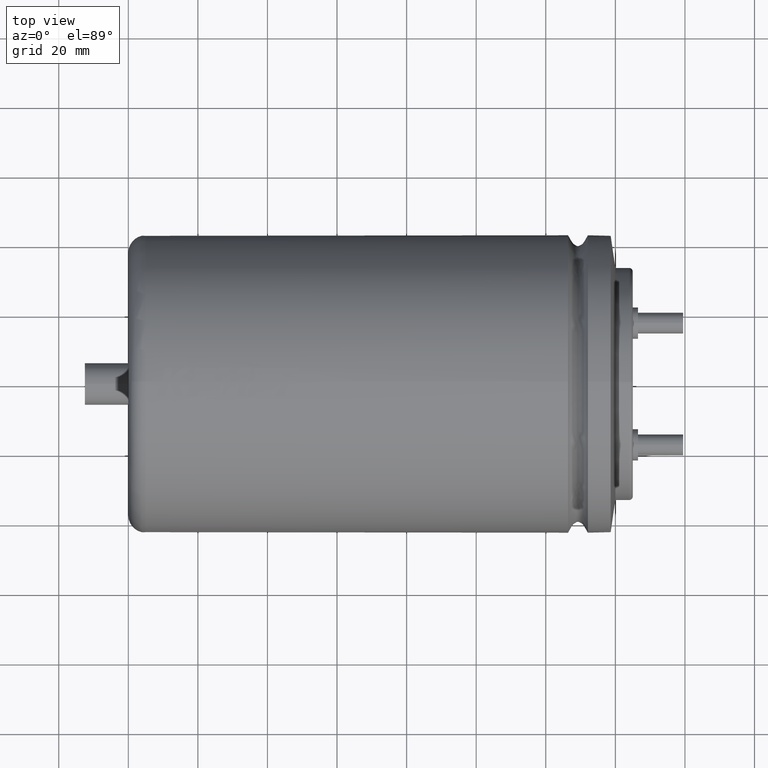
[diagram: clean part render]
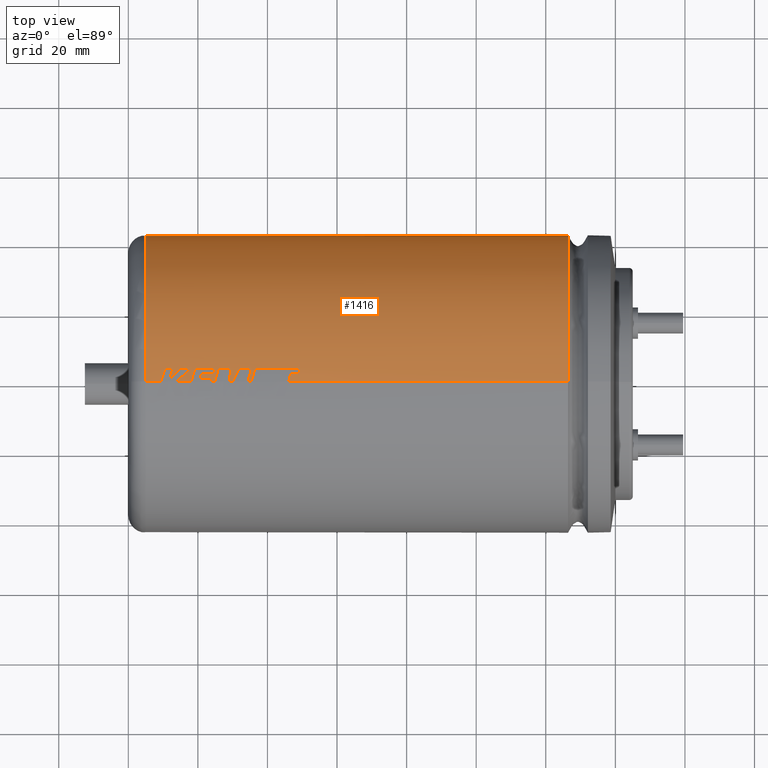
[diagram: same view with one face highlighted and labeled with its STEP entity id]
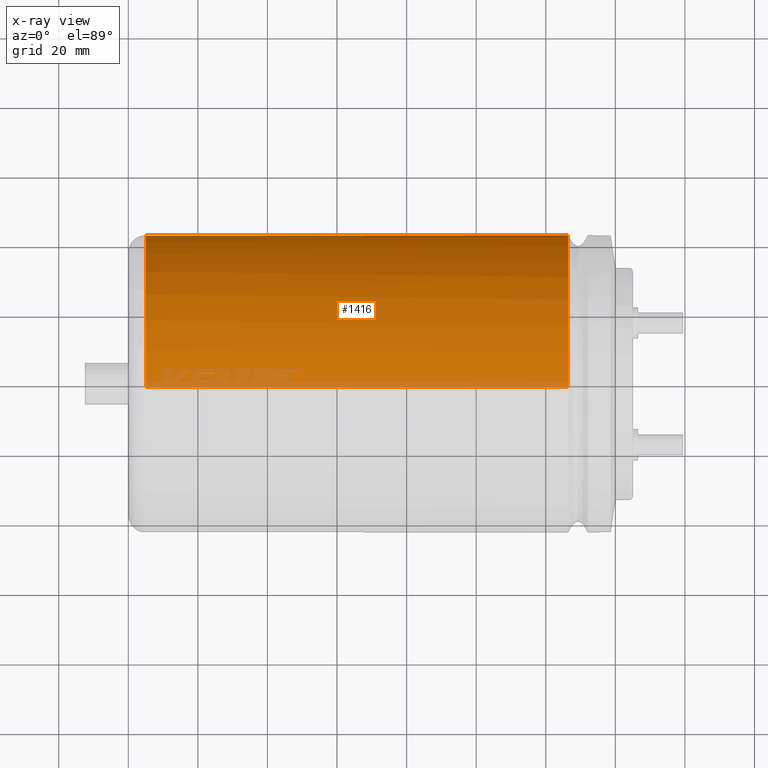
[diagram: x-ray of the same camera — body ghosted, the highlighted face saturated]
A machine part, top view. The second image highlights one B-rep face of the part: STEP entity #1416.
The next image is the same camera in x-ray: the body ghosted, the highlighted face saturated — about 6% of this face is hidden behind the body in this view.
In plain terms, the highlighted cylindrical surface (partial cylindrical patch) has radius 42.75 mm, axis along (-1, -0, -0).
Its self-contained STEP definition (entity closure, byte-faithful):
#6 = ORIENTED_EDGE ( 'NONE', *, *, #1022, .F. ) ;
#17 = CARTESIAN_POINT ( 'NONE',  ( 19.18127895595102200, 3.831743580796822100, 42.57793138623602400 ) ) ;
#51 = CARTESIAN_POINT ( 'NONE',  ( 46.06940501250741000, 3.464099563883077400E-008, 42.74997599866896500 ) ) ;
#60 = ORIENTED_EDGE ( 'NONE', *, *, #3074, .F. ) ;
#73 = DIRECTION ( 'NONE',  ( -1.000000000000000000, -0.0000000000000000000, -0.0000000000000000000 ) ) ;
#91 = FACE_OUTER_BOUND ( 'NONE', #3297, .T. ) ;
#93 = EDGE_CURVE ( 'NONE', #2442, #1033, #3871, .T. ) ;
#109 = VERTEX_POINT ( 'NONE', #955 ) ;
#153 = VERTEX_POINT ( 'NONE', #1361 ) ;
#157 = VERTEX_POINT ( 'NONE', #2268 ) ;
#176 = VECTOR ( 'NONE', #73, 1000.000000000000000 ) ;
#220 = CARTESIAN_POINT ( 'NONE',  ( 30.65666728525457400, 1.278961242918148100, 42.74995268344102300 ) ) ;
#253 = ORIENTED_EDGE ( 'NONE', *, *, #353, .F. ) ;
#261 = CARTESIAN_POINT ( 'NONE',  ( 12.81502928856817500, 3.831743580796822100, 42.57793138623602400 ) ) ;
#279 = B_SPLINE_CURVE_WITH_KNOTS ( 'NONE', 3,
 ( #2923, #726, #1674, #3836 ),
 .UNSPECIFIED., .F., .F.,
 ( 4, 4 ),
 ( 0.5242308854461927800, 1.000000000000000000 ),
 .UNSPECIFIED. ) ;
#310 = VERTEX_POINT ( 'NONE', #787 ) ;
#323 = DIRECTION ( 'NONE',  ( -1.000000000000000000, 0.0000000000000000000, 0.0000000000000000000 ) ) ;
#345 = CARTESIAN_POINT ( 'NONE',  ( 46.50624887025274000, 1.519835626061446100, 42.72973316105145600 ) ) ;
#351 = ORIENTED_EDGE ( 'NONE', *, *, #1311, .F. ) ;
#353 = EDGE_CURVE ( 'NONE', #2646, #1625, #1253, .T. ) ;
#357 = CARTESIAN_POINT ( 'NONE',  ( 140.0000000000000000, 0.0000000000000000000, 42.75000000000000000 ) ) ;
#359 = LINE ( 'NONE', #3696, #1783 ) ;
#360 = EDGE_CURVE ( 'NONE', #1351, #2491, #3866, .T. ) ;
#373 = DIRECTION ( 'NONE',  ( 1.000000000000000000, -0.0000000000000000000, -0.0000000000000000000 ) ) ;
#391 = CARTESIAN_POINT ( 'NONE',  ( 14.20845107159093100, 6.042334229532445000E-010, 42.74999989263206100 ) ) ;
#395 = CARTESIAN_POINT ( 'NONE',  ( 14.14579869573412400, 0.1511491731427585000, 42.74973279363811700 ) ) ;
#425 = VECTOR ( 'NONE', #2572, 1000.000000000000000 ) ;
#436 = CARTESIAN_POINT ( 'NONE',  ( 30.02234395900385900, -5.100665341134250600E-008, 42.74998577181066400 ) ) ;
#454 = B_SPLINE_CURVE_WITH_KNOTS ( 'NONE', 3,
 ( #3954, #2066, #3374, #1198 ),
 .UNSPECIFIED., .F., .F.,
 ( 4, 4 ),
 ( 0.0000000000000000000, 0.4757691145767431500 ),
 .UNSPECIFIED. ) ;
#460 = LINE ( 'NONE', #3900, #3763 ) ;
#489 = DIRECTION ( 'NONE',  ( -1.000000000000000000, 0.0000000000000000000, 0.0000000000000000000 ) ) ;
#508 = DIRECTION ( 'NONE',  ( 0.0000000000000000000, 0.0000000000000000000, -1.000000000000000000 ) ) ;
#509 = LINE ( 'NONE', #3045, #3712 ) ;
#518 = CIRCLE ( 'NONE', #2143, 42.75000000000000000 ) ;
#538 = CARTESIAN_POINT ( 'NONE',  ( 15.40073302849720000, 1.379723609511893700, 42.74538895338307000 ) ) ;
#540 = CARTESIAN_POINT ( 'NONE',  ( 12.97168825319801900, 1.544131940043463200, 42.73748101697943700 ) ) ;
#543 = CARTESIAN_POINT ( 'NONE',  ( 24.05377824352161700, 0.8017744206272610100, 42.74248071624327100 ) ) ;
#569 = EDGE_CURVE ( 'NONE', #2350, #2233, #1160, .T. ) ;
#574 = CARTESIAN_POINT ( 'NONE',  ( 25.13913877028951700, 3.831743580796822100, 42.57793138623602400 ) ) ;
#575 = DIRECTION ( 'NONE',  ( -1.000000000000000000, 0.0000000000000000000, 0.0000000000000000000 ) ) ;
#584 = CARTESIAN_POINT ( 'NONE',  ( 140.0000000000000000, 0.0000000000000000000, 42.75000000000000000 ) ) ;
#586 = ORIENTED_EDGE ( 'NONE', *, *, #622, .T. ) ;
#590 = ORIENTED_EDGE ( 'NONE', *, *, #3400, .F. ) ;
#606 = CARTESIAN_POINT ( 'NONE',  ( 12.81502928856817500, 3.831743580796822100, 42.57793138623602400 ) ) ;
#622 = EDGE_CURVE ( 'NONE', #2233, #1737, #518, .T. ) ;
#642 = CARTESIAN_POINT ( 'NONE',  ( 11.82922512478990000, 0.3978277389113966100, 42.74814888495352200 ) ) ;
#645 = DIRECTION ( 'NONE',  ( 0.0000000000000000000, 0.0000000000000000000, 1.000000000000000000 ) ) ;
#660 = CIRCLE ( 'NONE', #3546, 42.75000000000000000 ) ;
#726 = CARTESIAN_POINT ( 'NONE',  ( 34.72696800842807400, 1.278940869509552800, 42.74987447012367900 ) ) ;
#729 = EDGE_CURVE ( 'NONE', #1619, #2840, #3115, .T. ) ;
#735 = ORIENTED_EDGE ( 'NONE', *, *, #2277, .F. ) ;
#757 = CARTESIAN_POINT ( 'NONE',  ( 21.02883417006989900, 2.300724579949934100, 42.68804477142533900 ) ) ;
#767 = CARTESIAN_POINT ( 'NONE',  ( 24.05377824352161700, 0.8017744206272610100, 42.74248071624327100 ) ) ;
#787 = CARTESIAN_POINT ( 'NONE',  ( 48.93268913804423200, 2.278512071705079700, 42.68923614611878000 ) ) ;
#797 = EDGE_CURVE ( 'NONE', #2863, #2537, #1397, .T. ) ;
#806 = CYLINDRICAL_SURFACE ( 'NONE', #1768, 42.75000000000000000 ) ;
#844 = DIRECTION ( 'NONE',  ( -1.000000000000000000, -0.0000000000000000000, -0.0000000000000000000 ) ) ;
#847 = VECTOR ( 'NONE', #1770, 1000.000000000000000 ) ;
#872 = B_SPLINE_CURVE_WITH_KNOTS ( 'NONE', 3,
 ( #1959, #3465, #2262, #1554 ),
 .UNSPECIFIED., .F., .F.,
 ( 4, 4 ),
 ( 0.0000000000000000000, 1.000000000000000000 ),
 .UNSPECIFIED. ) ;
#902 = CARTESIAN_POINT ( 'NONE',  ( 126.4032000000000300, 0.0000000000000000000, 42.75000000000000000 ) ) ;
#905 = EDGE_CURVE ( 'NONE', #2116, #2587, #3867, .T. ) ;
#930 = CARTESIAN_POINT ( 'NONE',  ( 30.02234395900385900, -5.100665341134250600E-008, 42.74998577181066400 ) ) ;
#941 = ORIENTED_EDGE ( 'NONE', *, *, #1394, .F. ) ;
#955 = CARTESIAN_POINT ( 'NONE',  ( 46.06940501250741000, 3.464099563883077400E-008, 42.74997599866896500 ) ) ;
#971 = CARTESIAN_POINT ( 'NONE',  ( 31.92531712117396800, 3.831743580796822100, 42.57793138623602400 ) ) ;
#988 = CARTESIAN_POINT ( 'NONE',  ( 42.42079923641385600, 3.831743580796822100, 42.57793138623602400 ) ) ;
#992 = CARTESIAN_POINT ( 'NONE',  ( 46.72467474872208000, 2.278687113418639100, 42.68922680301366100 ) ) ;
#1006 = VECTOR ( 'NONE', #3422, 1000.000000000000000 ) ;
#1022 = EDGE_CURVE ( 'NONE', #2403, #2442, #1944, .T. ) ;
#1030 = ORIENTED_EDGE ( 'NONE', *, *, #3172, .F. ) ;
#1033 = VERTEX_POINT ( 'NONE', #2467 ) ;
#1052 = CARTESIAN_POINT ( 'NONE',  ( 23.90109556653702300, 0.2672738052232274100, 42.74999981974708900 ) ) ;
#1093 = B_SPLINE_CURVE_WITH_KNOTS ( 'NONE', 3,
 ( #2025, #538, #1834, #1499 ),
 .UNSPECIFIED., .F., .F.,
 ( 4, 4 ),
 ( 0.0000000000000000000, 1.000000000000000000 ),
 .UNSPECIFIED. ) ;
#1096 = B_SPLINE_CURVE_WITH_KNOTS ( 'NONE', 3,
 ( #1957, #2185, #1710, #3858 ),
 .UNSPECIFIED., .F., .F.,
 ( 4, 4 ),
 ( 0.0000000000000000000, 1.000000000000000000 ),
 .UNSPECIFIED. ) ;
#1102 = ORIENTED_EDGE ( 'NONE', *, *, #3122, .F. ) ;
#1103 = EDGE_CURVE ( 'NONE', #109, #3699, #1207, .T. ) ;
#1114 = DIRECTION ( 'NONE',  ( -1.000000000000000000, 0.0000000000000000000, 0.0000000000000000000 ) ) ;
#1124 = EDGE_CURVE ( 'NONE', #3699, #310, #1096, .T. ) ;
#1134 = EDGE_CURVE ( 'NONE', #3684, #2116, #3041, .T. ) ;
#1137 = B_SPLINE_CURVE_WITH_KNOTS ( 'NONE', 3,
 ( #3969, #1851, #1558, #2125 ),
 .UNSPECIFIED., .F., .F.,
 ( 4, 4 ),
 ( 0.0000000000000000000, 0.5875520498513009400 ),
 .UNSPECIFIED. ) ;
#1151 = VECTOR ( 'NONE', #1820, 1000.000000000000000 ) ;
#1160 = LINE ( 'NONE', #2565, #2710 ) ;
#1188 = CARTESIAN_POINT ( 'NONE',  ( 19.18127895595102200, 3.831743580796822100, 42.57793138623602400 ) ) ;
#1189 = CARTESIAN_POINT ( 'NONE',  ( 11.82922512478990000, 0.3978277389113966100, 42.74814888495352200 ) ) ;
#1198 = CARTESIAN_POINT ( 'NONE',  ( 35.33035477090190600, 1.982731972922146300E-008, 42.74993310662599600 ) ) ;
#1207 = B_SPLINE_CURVE_WITH_KNOTS ( 'NONE', 3,
 ( #51, #3177, #345, #992 ),
 .UNSPECIFIED., .F., .F.,
 ( 4, 4 ),
 ( 0.6496705422385921100, 1.000000000000000000 ),
 .UNSPECIFIED. ) ;
#1209 = CARTESIAN_POINT ( 'NONE',  ( 23.82475423021451300, -6.481018358702600500E-012, 42.74999991874028600 ) ) ;
#1217 = CARTESIAN_POINT ( 'NONE',  ( 9.416102615127131900, 1.979652188903189300E-008, 42.74993310703850800 ) ) ;
#1219 = EDGE_CURVE ( 'NONE', #153, #1983, #1497, .T. ) ;
#1244 = CIRCLE ( 'NONE', #1940, 42.75000000000000000 ) ;
#1253 = B_SPLINE_CURVE_WITH_KNOTS ( 'NONE', 3,
 ( #2351, #2953, #3660, #3276 ),
 .UNSPECIFIED., .F., .F.,
 ( 4, 4 ),
 ( 0.9654820993788423300, 1.000000000000000000 ),
 .UNSPECIFIED. ) ;
#1254 = CARTESIAN_POINT ( 'NONE',  ( 29.37796446489269900, 3.831743580796822100, 42.57793138623602400 ) ) ;
#1270 = ORIENTED_EDGE ( 'NONE', *, *, #729, .F. ) ;
#1311 = EDGE_CURVE ( 'NONE', #3968, #1737, #2950, .T. ) ;
#1327 = ORIENTED_EDGE ( 'NONE', *, *, #905, .F. ) ;
#1333 = ORIENTED_EDGE ( 'NONE', *, *, #3343, .F. ) ;
#1339 = DIRECTION ( 'NONE',  ( 0.0000000000000000000, 0.0000000000000000000, -1.000000000000000000 ) ) ;
#1351 = VERTEX_POINT ( 'NONE', #2435 ) ;
#1356 = CARTESIAN_POINT ( 'NONE',  ( 17.91059858455949800, 3.831743580796822100, 42.57793138623602400 ) ) ;
#1357 = VECTOR ( 'NONE', #2012, 1000.000000000000000 ) ;
#1361 = CARTESIAN_POINT ( 'NONE',  ( 21.02883417006989900, 2.300724579949934100, 42.68804477142533900 ) ) ;
#1379 = ORIENTED_EDGE ( 'NONE', *, *, #3939, .F. ) ;
#1386 = ORIENTED_EDGE ( 'NONE', *, *, #3707, .F. ) ;
#1394 = EDGE_CURVE ( 'NONE', #2491, #2870, #2486, .T. ) ;
#1397 = B_SPLINE_CURVE_WITH_KNOTS ( 'NONE', 3,
 ( #2689, #3926, #540, #3015 ),
 .UNSPECIFIED., .F., .F.,
 ( 4, 4 ),
 ( 0.0000000000000000000, 1.000000000000000000 ),
 .UNSPECIFIED. ) ;
#1400 = LINE ( 'NONE', #1832, #176 ) ;
#1406 = VECTOR ( 'NONE', #575, 1000.000000000000000 ) ;
#1416 = ADVANCED_FACE ( 'NONE', ( #91 ), #806, .T. ) ;
#1476 = CARTESIAN_POINT ( 'NONE',  ( 42.42079923641385600, 3.831743580796822100, 42.57793138623602400 ) ) ;
#1497 = LINE ( 'NONE', #757, #425 ) ;
#1499 = CARTESIAN_POINT ( 'NONE',  ( 17.91059858455949800, 3.831743580796822100, 42.57793138623602400 ) ) ;
#1509 = CARTESIAN_POINT ( 'NONE',  ( 18.81323222483752700, 2.557884567147762100, 42.69257061222640500 ) ) ;
#1517 = CARTESIAN_POINT ( 'NONE',  ( 9.416102615127131900, 1.979652188903189300E-008, 42.74993310703850800 ) ) ;
#1527 = CARTESIAN_POINT ( 'NONE',  ( 29.24026997616917700, 1.278960775984293400, 42.74995291999603400 ) ) ;
#1529 = CARTESIAN_POINT ( 'NONE',  ( 10.51875932411242000, 3.831743580796822100, 42.57793138623602400 ) ) ;
#1541 = CARTESIAN_POINT ( 'NONE',  ( 20.88334128524331100, 1.801444111558922400, 42.71495410522282300 ) ) ;
#1554 = CARTESIAN_POINT ( 'NONE',  ( 25.13913877028951700, 3.831743580796822100, 42.57793138623602400 ) ) ;
#1558 = CARTESIAN_POINT ( 'NONE',  ( 25.20828852604694200, 1.278956251425675200, 42.74992918633142100 ) ) ;
#1606 = VECTOR ( 'NONE', #2453, 1000.000000000000000 ) ;
#1619 = VERTEX_POINT ( 'NONE', #971 ) ;
#1625 = VERTEX_POINT ( 'NONE', #395 ) ;
#1636 = DIRECTION ( 'NONE',  ( -1.000000000000000000, -0.0000000000000000000, -0.0000000000000000000 ) ) ;
#1656 = VECTOR ( 'NONE', #3778, 1000.000000000000000 ) ;
#1674 = CARTESIAN_POINT ( 'NONE',  ( 35.09467401910112700, 2.557884561706930300, 42.69257061271605400 ) ) ;
#1708 = CARTESIAN_POINT ( 'NONE',  ( 24.84066857345740300, -2.341949026371263100E-008, 42.74997240907295300 ) ) ;
#1710 = CARTESIAN_POINT ( 'NONE',  ( 48.19668434160350800, 2.278570418949318600, 42.68923303187003200 ) ) ;
#1721 = CARTESIAN_POINT ( 'NONE',  ( 126.4032000000000300, 0.0000000000000000000, 0.0000000000000000000 ) ) ;
#1725 = CARTESIAN_POINT ( 'NONE',  ( 4.998000000000002900, 0.0000000000000000000, 0.0000000000000000000 ) ) ;
#1737 = VERTEX_POINT ( 'NONE', #2993 ) ;
#1743 = B_SPLINE_CURVE_WITH_KNOTS ( 'NONE', 3,
 ( #1529, #3360, #2781, #1517 ),
 .UNSPECIFIED., .F., .F.,
 ( 4, 4 ),
 ( 0.0000000000000000000, 0.4757691145313975300 ),
 .UNSPECIFIED. ) ;
#1768 = AXIS2_PLACEMENT_3D ( 'NONE', #3366, #844, #645 ) ;
#1770 = DIRECTION ( 'NONE',  ( -1.000000000000000000, -0.0000000000000000000, -0.0000000000000000000 ) ) ;
#1783 = VECTOR ( 'NONE', #3164, 1000.000000000000000 ) ;
#1799 = CARTESIAN_POINT ( 'NONE',  ( 140.0000000000000000, 0.0000000000000000000, 42.75000000000000000 ) ) ;
#1803 = ORIENTED_EDGE ( 'NONE', *, *, #1917, .F. ) ;
#1815 = ORIENTED_EDGE ( 'NONE', *, *, #3870, .F. ) ;
#1820 = DIRECTION ( 'NONE',  ( -1.000000000000000000, -0.0000000000000000000, -0.0000000000000000000 ) ) ;
#1830 = CARTESIAN_POINT ( 'NONE',  ( 18.44520344496685400, 1.278940872453470800, 42.74987446934743200 ) ) ;
#1832 = CARTESIAN_POINT ( 'NONE',  ( 140.0000000000000000, 0.0000000000000000000, 42.75000000000000000 ) ) ;
#1834 = CARTESIAN_POINT ( 'NONE',  ( 16.65566425179642400, 2.608106504347230500, 42.68805095663925900 ) ) ;
#1839 = CARTESIAN_POINT ( 'NONE',  ( 29.17142294529891400, -1.153507097782433000E-009, 42.74998584385240700 ) ) ;
#1850 = CARTESIAN_POINT ( 'NONE',  ( 29.30911654459485000, 2.557913406019249400, 42.69256801691101800 ) ) ;
#1851 = CARTESIAN_POINT ( 'NONE',  ( 25.57590670334179000, 2.557906912437320800, 42.69256860129216600 ) ) ;
#1862 = ORIENTED_EDGE ( 'NONE', *, *, #1890, .F. ) ;
#1890 = EDGE_CURVE ( 'NONE', #3401, #1619, #509, .T. ) ;
#1904 = CARTESIAN_POINT ( 'NONE',  ( 49.38023039219739700, 3.831743580796822100, 42.57793138623602400 ) ) ;
#1913 = ORIENTED_EDGE ( 'NONE', *, *, #360, .F. ) ;
#1917 = EDGE_CURVE ( 'NONE', #3895, #2190, #3903, .T. ) ;
#1929 = CARTESIAN_POINT ( 'NONE',  ( 48.93268913804423200, 2.278512071705079700, 42.68923614611878000 ) ) ;
#1935 = EDGE_CURVE ( 'NONE', #3651, #109, #2852, .T. ) ;
#1940 = AXIS2_PLACEMENT_3D ( 'NONE', #2869, #373, #1339 ) ;
#1944 = B_SPLINE_CURVE_WITH_KNOTS ( 'NONE', 3,
 ( #3107, #1527, #1850, #1254 ),
 .UNSPECIFIED., .F., .F.,
 ( 4, 4 ),
 ( 0.3340406363079538900, 1.000000000000000000 ),
 .UNSPECIFIED. ) ;
#1948 = CARTESIAN_POINT ( 'NONE',  ( 36.43397980023063800, 3.831743580796822100, 42.57793138623602400 ) ) ;
#1957 = CARTESIAN_POINT ( 'NONE',  ( 46.72467474872208000, 2.278687113418639100, 42.68922680301366100 ) ) ;
#1959 = CARTESIAN_POINT ( 'NONE',  ( 24.70315055995010700, 2.300724579949934100, 42.68804477142533900 ) ) ;
#1974 = ORIENTED_EDGE ( 'NONE', *, *, #797, .F. ) ;
#1983 = VERTEX_POINT ( 'NONE', #1985 ) ;
#1985 = CARTESIAN_POINT ( 'NONE',  ( 24.70315055995010700, 2.300724579949934100, 42.68804477142533900 ) ) ;
#2012 = DIRECTION ( 'NONE',  ( -1.000000000000000000, 0.0000000000000000000, 0.0000000000000000000 ) ) ;
#2014 = CARTESIAN_POINT ( 'NONE',  ( 18.07717560122824100, 1.984251184566652200E-008, 42.74993310642212700 ) ) ;
#2025 = CARTESIAN_POINT ( 'NONE',  ( 14.14579869573412400, 0.1511491731427585000, 42.74973279363811700 ) ) ;
#2027 = ORIENTED_EDGE ( 'NONE', *, *, #3067, .F. ) ;
#2038 = B_SPLINE_CURVE_WITH_KNOTS ( 'NONE', 3,
 ( #1929, #2563, #2510, #1904 ),
 .UNSPECIFIED., .F., .F.,
 ( 4, 4 ),
 ( 0.0000000000000000000, 1.000000000000000000 ),
 .UNSPECIFIED. ) ;
#2044 = DIRECTION ( 'NONE',  ( 0.0000000000000000000, 0.0000000000000000000, -1.000000000000000000 ) ) ;
#2065 = ORIENTED_EDGE ( 'NONE', *, *, #1134, .F. ) ;
#2066 = CARTESIAN_POINT ( 'NONE',  ( 36.06609251546007000, 2.557884564459704400, 42.69257061246832300 ) ) ;
#2097 = CARTESIAN_POINT ( 'NONE',  ( 126.4032000000000300, 5.235365066354935500E-015, -42.75000000000000000 ) ) ;
#2109 = CARTESIAN_POINT ( 'NONE',  ( 20.73784841912451800, 1.301691573227433700, 42.73310314202036900 ) ) ;
#2116 = VERTEX_POINT ( 'NONE', #988 ) ;
#2125 = CARTESIAN_POINT ( 'NONE',  ( 24.84066857345740300, -2.341949026371263100E-008, 42.74997240907295300 ) ) ;
#2134 = EDGE_CURVE ( 'NONE', #3560, #3651, #660, .T. ) ;
#2143 = AXIS2_PLACEMENT_3D ( 'NONE', #1725, #2343, #508 ) ;
#2151 = B_SPLINE_CURVE_WITH_KNOTS ( 'NONE', 3,
 ( #2639, #1052, #3246, #767 ),
 .UNSPECIFIED., .F., .F.,
 ( 4, 4 ),
 ( 0.4621784057425439300, 1.000000000000000000 ),
 .UNSPECIFIED. ) ;
#2161 = VERTEX_POINT ( 'NONE', #1708 ) ;
#2185 = CARTESIAN_POINT ( 'NONE',  ( 47.46067954516279000, 2.278628766187171400, 42.68922991750165600 ) ) ;
#2190 = VERTEX_POINT ( 'NONE', #3559 ) ;
#2201 = VERTEX_POINT ( 'NONE', #2340 ) ;
#2233 = VERTEX_POINT ( 'NONE', #3243 ) ;
#2247 = CARTESIAN_POINT ( 'NONE',  ( 49.38023039219739700, 3.831743580796822100, 42.57793138623602400 ) ) ;
#2256 = ORIENTED_EDGE ( 'NONE', *, *, #3039, .F. ) ;
#2262 = CARTESIAN_POINT ( 'NONE',  ( 24.99380935998668100, 3.322117712781445000, 42.62379447974007000 ) ) ;
#2268 = CARTESIAN_POINT ( 'NONE',  ( 35.33035477090190600, 1.982731972922146300E-008, 42.74993310662599600 ) ) ;
#2277 = EDGE_CURVE ( 'NONE', #2870, #2646, #2758, .T. ) ;
#2293 = ORIENTED_EDGE ( 'NONE', *, *, #3688, .F. ) ;
#2299 = DIRECTION ( 'NONE',  ( 1.000000000000000000, -0.0000000000000000000, -0.0000000000000000000 ) ) ;
#2329 = VECTOR ( 'NONE', #3327, 1000.000000000000000 ) ;
#2339 = ORIENTED_EDGE ( 'NONE', *, *, #2134, .F. ) ;
#2340 = CARTESIAN_POINT ( 'NONE',  ( 34.35926293318576100, 1.981166280551685500E-008, 42.74993310683476700 ) ) ;
#2343 = DIRECTION ( 'NONE',  ( 1.000000000000000000, 0.0000000000000000000, 0.0000000000000000000 ) ) ;
#2350 = VERTEX_POINT ( 'NONE', #2097 ) ;
#2351 = CARTESIAN_POINT ( 'NONE',  ( 14.20845107159093100, 6.042334229532445000E-010, 42.74999989263206100 ) ) ;
#2373 = LINE ( 'NONE', #3553, #1357 ) ;
#2403 = VERTEX_POINT ( 'NONE', #1839 ) ;
#2435 = CARTESIAN_POINT ( 'NONE',  ( 25.13913877028951700, 3.831743580796822100, 42.57793138623602400 ) ) ;
#2442 = VERTEX_POINT ( 'NONE', #3685 ) ;
#2453 = DIRECTION ( 'NONE',  ( -1.000000000000000000, 0.0000000000000000000, 0.0000000000000000000 ) ) ;
#2467 = CARTESIAN_POINT ( 'NONE',  ( 25.94353456621886900, 3.831743580796822100, 42.57793138623602400 ) ) ;
#2477 = CARTESIAN_POINT ( 'NONE',  ( 12.81502928856817500, 3.831743580796822100, 42.57793138623602400 ) ) ;
#2485 = ORIENTED_EDGE ( 'NONE', *, *, #3506, .F. ) ;
#2486 = B_SPLINE_CURVE_WITH_KNOTS ( 'NONE', 3,
 ( #1188, #1509, #1830, #2723 ),
 .UNSPECIFIED., .F., .F.,
 ( 4, 4 ),
 ( 0.0000000000000000000, 0.4757691145991558800 ),
 .UNSPECIFIED. ) ;
#2491 = VERTEX_POINT ( 'NONE', #17 ) ;
#2505 = CARTESIAN_POINT ( 'NONE',  ( 49.38023039219739700, 3.831743580796822100, 42.57793138623602400 ) ) ;
#2510 = CARTESIAN_POINT ( 'NONE',  ( 49.23104996670500100, 3.314732743821106300, 42.62445908007378400 ) ) ;
#2537 = VERTEX_POINT ( 'NONE', #642 ) ;
#2563 = CARTESIAN_POINT ( 'NONE',  ( 49.08186956353662800, 2.796874448438428000, 42.66156886884865400 ) ) ;
#2565 = CARTESIAN_POINT ( 'NONE',  ( 140.0000000000000000, 5.235365066354935500E-015, -42.75000000000000000 ) ) ;
#2572 = DIRECTION ( 'NONE',  ( 1.000000000000000000, 0.0000000000000000000, 0.0000000000000000000 ) ) ;
#2579 = CARTESIAN_POINT ( 'NONE',  ( 15.25661230895270000, 3.831743580796822100, 42.57793138623602400 ) ) ;
#2587 = VERTEX_POINT ( 'NONE', #1948 ) ;
#2639 = CARTESIAN_POINT ( 'NONE',  ( 23.82475423021451300, -6.481018358702600500E-012, 42.74999991874028600 ) ) ;
#2646 = VERTEX_POINT ( 'NONE', #391 ) ;
#2679 = ORIENTED_EDGE ( 'NONE', *, *, #3740, .F. ) ;
#2689 = CARTESIAN_POINT ( 'NONE',  ( 15.25661230895270000, 3.831743580796822100, 42.57793138623602400 ) ) ;
#2695 = CARTESIAN_POINT ( 'NONE',  ( 140.0000000000000000, 0.0000000000000000000, 42.75000000000000000 ) ) ;
#2700 = ORIENTED_EDGE ( 'NONE', *, *, #1935, .F. ) ;
#2710 = VECTOR ( 'NONE', #1636, 1000.000000000000000 ) ;
#2721 = ORIENTED_EDGE ( 'NONE', *, *, #1103, .F. ) ;
#2723 = CARTESIAN_POINT ( 'NONE',  ( 18.07717560122824100, 1.984251184566652200E-008, 42.74993310642212700 ) ) ;
#2725 = VERTEX_POINT ( 'NONE', #3223 ) ;
#2738 = EDGE_CURVE ( 'NONE', #3033, #2725, #2373, .T. ) ;
#2741 = CARTESIAN_POINT ( 'NONE',  ( 31.29098716437153600, 2.557916028446593200, 42.69256778090920100 ) ) ;
#2748 = CARTESIAN_POINT ( 'NONE',  ( 21.02883417006989900, 2.300724579949934100, 42.68804477142533900 ) ) ;
#2756 = CARTESIAN_POINT ( 'NONE',  ( 12.48642751354273800, 2.690003200249787800, 42.68068077380988300 ) ) ;
#2758 = LINE ( 'NONE', #2695, #847 ) ;
#2762 = VECTOR ( 'NONE', #489, 1000.000000000000000 ) ;
#2781 = CARTESIAN_POINT ( 'NONE',  ( 9.783648251018048500, 1.278940868056031500, 42.74987447050694600 ) ) ;
#2802 = CARTESIAN_POINT ( 'NONE',  ( 12.15782689981533500, 1.544132554259132200, 42.73748101126335500 ) ) ;
#2840 = VERTEX_POINT ( 'NONE', #436 ) ;
#2852 = LINE ( 'NONE', #357, #1006 ) ;
#2863 = VERTEX_POINT ( 'NONE', #2579 ) ;
#2869 = CARTESIAN_POINT ( 'NONE',  ( 126.4032000000000300, 0.0000000000000000000, 0.0000000000000000000 ) ) ;
#2870 = VERTEX_POINT ( 'NONE', #2014 ) ;
#2923 = CARTESIAN_POINT ( 'NONE',  ( 34.35926293318576100, 1.981166280551685500E-008, 42.74993310683476700 ) ) ;
#2950 = LINE ( 'NONE', #1799, #2329 ) ;
#2953 = CARTESIAN_POINT ( 'NONE',  ( 14.18756695314812100, 0.05038314672781166900, 42.74999992330990000 ) ) ;
#2984 = ORIENTED_EDGE ( 'NONE', *, *, #2738, .F. ) ;
#2993 = CARTESIAN_POINT ( 'NONE',  ( 4.998000000000002900, 0.0000000000000000000, 42.75000000000000000 ) ) ;
#2996 = B_SPLINE_CURVE_WITH_KNOTS ( 'NONE', 3,
 ( #1189, #2802, #2756, #2477 ),
 .UNSPECIFIED., .F., .F.,
 ( 4, 4 ),
 ( 0.0000000000000000000, 1.000000000000000000 ),
 .UNSPECIFIED. ) ;
#3015 = CARTESIAN_POINT ( 'NONE',  ( 11.82922512478990000, 0.3978277389113966100, 42.74814888495352200 ) ) ;
#3033 = VERTEX_POINT ( 'NONE', #543 ) ;
#3039 = EDGE_CURVE ( 'NONE', #2725, #153, #3290, .T. ) ;
#3041 = LINE ( 'NONE', #2505, #1656 ) ;
#3045 = CARTESIAN_POINT ( 'NONE',  ( 35.46239796756520200, 3.831743580796822100, 42.57793138623602400 ) ) ;
#3067 = EDGE_CURVE ( 'NONE', #2190, #3968, #1743, .T. ) ;
#3074 = EDGE_CURVE ( 'NONE', #2587, #157, #454, .T. ) ;
#3097 = VECTOR ( 'NONE', #323, 1000.000000000000000 ) ;
#3107 = CARTESIAN_POINT ( 'NONE',  ( 29.17142294529891400, -1.153507097782433000E-009, 42.74998584385240700 ) ) ;
#3115 = B_SPLINE_CURVE_WITH_KNOTS ( 'NONE', 3,
 ( #3647, #2741, #220, #930 ),
 .UNSPECIFIED., .F., .F.,
 ( 4, 4 ),
 ( 0.0000000000000000000, 0.6659592421916815700 ),
 .UNSPECIFIED. ) ;
#3122 = EDGE_CURVE ( 'NONE', #1033, #2161, #1137, .T. ) ;
#3164 = DIRECTION ( 'NONE',  ( -1.000000000000000000, -0.0000000000000000000, -0.0000000000000000000 ) ) ;
#3172 = EDGE_CURVE ( 'NONE', #310, #3684, #2038, .T. ) ;
#3177 = CARTESIAN_POINT ( 'NONE',  ( 46.28782637608716800, 0.7599161376531457000, 42.74996675437051200 ) ) ;
#3219 = ORIENTED_EDGE ( 'NONE', *, *, #1124, .F. ) ;
#3223 = CARTESIAN_POINT ( 'NONE',  ( 20.59235553429793300, 0.8017744206272611200, 42.74248071624327100 ) ) ;
#3243 = CARTESIAN_POINT ( 'NONE',  ( 4.998000000000002900, 5.235365066354935500E-015, -42.75000000000000000 ) ) ;
#3246 = CARTESIAN_POINT ( 'NONE',  ( 23.97743690244606200, 0.5345476091563846600, 42.74749342534094200 ) ) ;
#3272 = CARTESIAN_POINT ( 'NONE',  ( 35.46239796756520200, 3.831743580796898000, 42.57793138623601700 ) ) ;
#3276 = CARTESIAN_POINT ( 'NONE',  ( 14.14579869573412400, 0.1511491731427585000, 42.74973279363811700 ) ) ;
#3290 = B_SPLINE_CURVE_WITH_KNOTS ( 'NONE', 3,
 ( #3334, #2109, #1541, #2748 ),
 .UNSPECIFIED., .F., .F.,
 ( 4, 4 ),
 ( 0.0000000000000000000, 1.000000000000000000 ),
 .UNSPECIFIED. ) ;
#3297 = EDGE_LOOP ( 'NONE', ( #1386, #3454, #586, #351, #2027, #1803, #1815, #1974, #590, #3310, #253, #735, #941, #1913, #3748, #3742, #2256, #2984, #2679, #2485, #1102, #3604, #6, #2293, #1270, #1862, #1333, #1379, #60, #1327, #2065, #1030, #3219, #2721, #2700, #2339 ) ) ;
#3310 = ORIENTED_EDGE ( 'NONE', *, *, #3481, .F. ) ;
#3327 = DIRECTION ( 'NONE',  ( -1.000000000000000000, -0.0000000000000000000, -0.0000000000000000000 ) ) ;
#3334 = CARTESIAN_POINT ( 'NONE',  ( 20.59235553429793300, 0.8017744206272611200, 42.74248071624327100 ) ) ;
#3343 = EDGE_CURVE ( 'NONE', #2201, #3401, #279, .T. ) ;
#3348 = DIRECTION ( 'NONE',  ( -1.000000000000000000, 0.0000000000000000000, 0.0000000000000000000 ) ) ;
#3357 = CARTESIAN_POINT ( 'NONE',  ( 126.4032000000000300, 42.75000000000000000, 0.0000000000000000000 ) ) ;
#3360 = CARTESIAN_POINT ( 'NONE',  ( 10.15119482199315600, 2.557884559020499700, 42.69257061295781600 ) ) ;
#3366 = CARTESIAN_POINT ( 'NONE',  ( 140.0000000000000000, 0.0000000000000000000, 0.0000000000000000000 ) ) ;
#3374 = CARTESIAN_POINT ( 'NONE',  ( 35.69822317528816300, 1.278940870999049100, 42.74987446973094100 ) ) ;
#3400 = EDGE_CURVE ( 'NONE', #3796, #2863, #460, .T. ) ;
#3401 = VERTEX_POINT ( 'NONE', #3272 ) ;
#3422 = DIRECTION ( 'NONE',  ( -1.000000000000000000, -0.0000000000000000000, -0.0000000000000000000 ) ) ;
#3454 = ORIENTED_EDGE ( 'NONE', *, *, #569, .T. ) ;
#3465 = CARTESIAN_POINT ( 'NONE',  ( 24.84847997025294200, 2.811668422504707700, 42.66050682575848200 ) ) ;
#3481 = EDGE_CURVE ( 'NONE', #1625, #3796, #1093, .T. ) ;
#3506 = EDGE_CURVE ( 'NONE', #2161, #3538, #3663, .T. ) ;
#3538 = VERTEX_POINT ( 'NONE', #1209 ) ;
#3546 = AXIS2_PLACEMENT_3D ( 'NONE', #1721, #2299, #2044 ) ;
#3553 = CARTESIAN_POINT ( 'NONE',  ( 24.05377824352161700, 0.8017744206272610100, 42.74248071624327100 ) ) ;
#3559 = CARTESIAN_POINT ( 'NONE',  ( 10.51875932411242000, 3.831743580796822100, 42.57793138623602400 ) ) ;
#3560 = VERTEX_POINT ( 'NONE', #3357 ) ;
#3604 = ORIENTED_EDGE ( 'NONE', *, *, #93, .F. ) ;
#3647 = CARTESIAN_POINT ( 'NONE',  ( 31.92531712117396800, 3.831743580796822100, 42.57793138623602400 ) ) ;
#3651 = VERTEX_POINT ( 'NONE', #902 ) ;
#3660 = CARTESIAN_POINT ( 'NONE',  ( 14.16668282751865100, 0.1007663085233937900, 42.74991093108671000 ) ) ;
#3663 = LINE ( 'NONE', #584, #1151 ) ;
#3679 = CARTESIAN_POINT ( 'NONE',  ( 46.72467474872208000, 2.278687113418639100, 42.68922680301366100 ) ) ;
#3681 = EDGE_CURVE ( 'NONE', #1983, #1351, #872, .T. ) ;
#3684 = VERTEX_POINT ( 'NONE', #2247 ) ;
#3685 = CARTESIAN_POINT ( 'NONE',  ( 29.37796446489269900, 3.831743580796822100, 42.57793138623602400 ) ) ;
#3688 = EDGE_CURVE ( 'NONE', #2840, #2403, #359, .T. ) ;
#3696 = CARTESIAN_POINT ( 'NONE',  ( 140.0000000000000000, 0.0000000000000000000, 42.75000000000000000 ) ) ;
#3699 = VERTEX_POINT ( 'NONE', #3679 ) ;
#3707 = EDGE_CURVE ( 'NONE', #2350, #3560, #1244, .T. ) ;
#3712 = VECTOR ( 'NONE', #3348, 1000.000000000000000 ) ;
#3740 = EDGE_CURVE ( 'NONE', #3538, #3033, #2151, .T. ) ;
#3742 = ORIENTED_EDGE ( 'NONE', *, *, #1219, .F. ) ;
#3748 = ORIENTED_EDGE ( 'NONE', *, *, #3681, .F. ) ;
#3763 = VECTOR ( 'NONE', #1114, 1000.000000000000000 ) ;
#3778 = DIRECTION ( 'NONE',  ( -1.000000000000000000, 0.0000000000000000000, 0.0000000000000000000 ) ) ;
#3796 = VERTEX_POINT ( 'NONE', #1356 ) ;
#3799 = CARTESIAN_POINT ( 'NONE',  ( 29.37796446489269900, 3.831743580796822100, 42.57793138623602400 ) ) ;
#3836 = CARTESIAN_POINT ( 'NONE',  ( 35.46239796756520200, 3.831743580796898000, 42.57793138623601700 ) ) ;
#3858 = CARTESIAN_POINT ( 'NONE',  ( 48.93268913804423200, 2.278512071705079700, 42.68923614611878000 ) ) ;
#3866 = LINE ( 'NONE', #574, #2762 ) ;
#3867 = LINE ( 'NONE', #1476, #1606 ) ;
#3870 = EDGE_CURVE ( 'NONE', #2537, #3895, #2996, .T. ) ;
#3871 = LINE ( 'NONE', #3799, #3097 ) ;
#3895 = VERTEX_POINT ( 'NONE', #606 ) ;
#3900 = CARTESIAN_POINT ( 'NONE',  ( 17.91059858455949800, 3.831743580796822100, 42.57793138623602400 ) ) ;
#3903 = LINE ( 'NONE', #261, #1406 ) ;
#3926 = CARTESIAN_POINT ( 'NONE',  ( 14.11414918054458100, 2.690003812019738500, 42.68068071875447300 ) ) ;
#3939 = EDGE_CURVE ( 'NONE', #157, #2201, #1400, .T. ) ;
#3954 = CARTESIAN_POINT ( 'NONE',  ( 36.43397980023063800, 3.831743580796822100, 42.57793138623602400 ) ) ;
#3968 = VERTEX_POINT ( 'NONE', #1217 ) ;
#3969 = CARTESIAN_POINT ( 'NONE',  ( 25.94353456621886900, 3.831743580796822100, 42.57793138623602400 ) ) ;